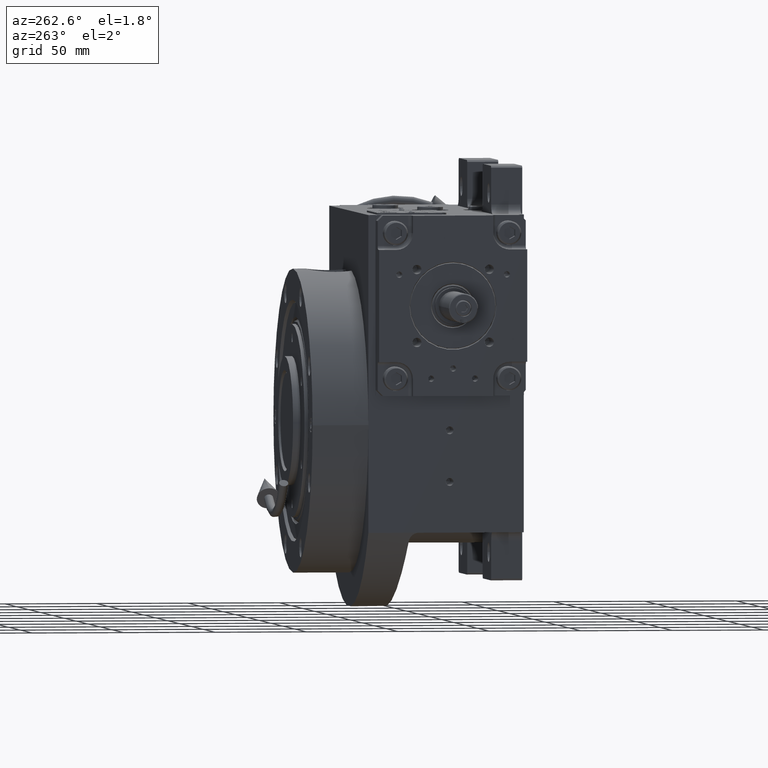
[diagram: clean part render]
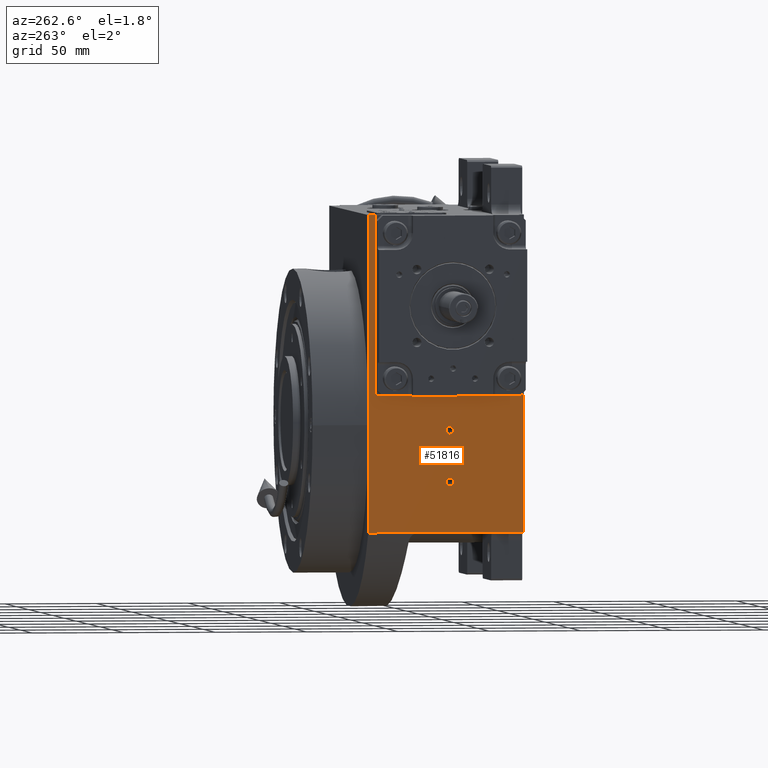
[diagram: same view with one face highlighted and labeled with its STEP entity id]
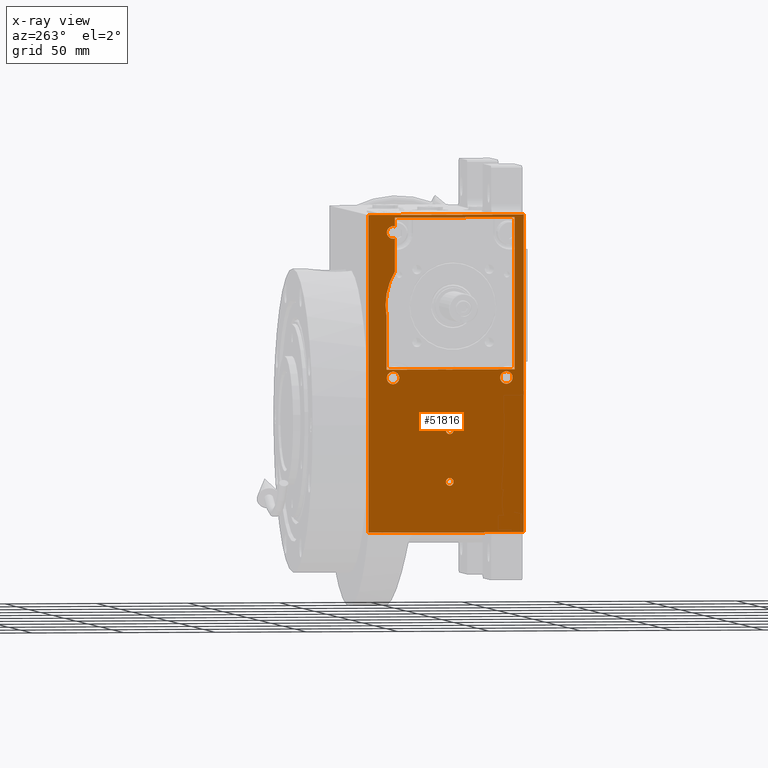
[diagram: x-ray of the same camera — body ghosted, the highlighted face saturated]
A machine part, auxiliary view. The second image highlights one B-rep face of the part: STEP entity #51816.
The next image is the same camera in x-ray: the body ghosted, the highlighted face saturated — about 0% of this face is hidden behind the body in this view.
In plain terms, the highlighted planar face has unit normal (-1, 0, 0).
Its self-contained STEP definition (entity closure, byte-faithful):
#3 = CARTESIAN_POINT ( 'NONE',  ( -82.50000000000000000, 44.50000000000000000, -58.50000000000000000 ) ) ;
#186 = DIRECTION ( 'NONE',  ( 0.000000000000000000, -1.000000000000000000, -8.260587980841937794E-16 ) ) ;
#258 = EDGE_CURVE ( 'NONE', #50336, #52436, #26690, .T. ) ;
#322 = CARTESIAN_POINT ( 'NONE',  ( -82.50000000000000000, -31.00000000000000000, 25.50000000000000000 ) ) ;
#570 = CIRCLE ( 'NONE', #29520, 2.100000000000000089 ) ;
#626 = VERTEX_POINT ( 'NONE', #20182 ) ;
#651 = CARTESIAN_POINT ( 'NONE',  ( -82.49999999999994316, 34.49999999999999289, 30.00000000000000000 ) ) ;
#691 = CIRCLE ( 'NONE', #5697, 3.400000000000000355 ) ;
#780 = EDGE_LOOP ( 'NONE', ( #30634, #38618, #28043, #57589, #1068, #56854, #18006, #2316, #5041, #38037, #61325, #3346, #40463 ) ) ;
#1068 = ORIENTED_EDGE ( 'NONE', *, *, #4287, .T. ) ;
#1262 = ORIENTED_EDGE ( 'NONE', *, *, #258, .F. ) ;
#1839 = CARTESIAN_POINT ( 'NONE',  ( -82.50000000000000000, 2.100000000000000089, -31.00000000000000000 ) ) ;
#2019 = EDGE_CURVE ( 'NONE', #4799, #38935, #5734, .T. ) ;
#2174 = CARTESIAN_POINT ( 'NONE',  ( -82.50000000000000000, 44.50000000000000000, -58.50000000000000000 ) ) ;
#2316 = ORIENTED_EDGE ( 'NONE', *, *, #52853, .T. ) ;
#2926 = CARTESIAN_POINT ( 'NONE',  ( -82.50000000000000000, 35.08908161224486122, 62.82758922874562302 ) ) ;
#3346 = ORIENTED_EDGE ( 'NONE', *, *, #18392, .T. ) ;
#3504 = CIRCLE ( 'NONE', #36591, 2.100000000000000089 ) ;
#3730 = CARTESIAN_POINT ( 'NONE',  ( -82.50000000000000000, 29.99999999930757255, -58.50000000028541791 ) ) ;
#3799 = DIRECTION ( 'NONE',  ( 0.000000000000000000, -1.000000000000000000, 0.000000000000000000 ) ) ;
#3997 = CARTESIAN_POINT ( 'NONE',  ( -82.50000000000000000, 27.59999999999999787, 25.50000000000000000 ) ) ;
#4120 = CARTESIAN_POINT ( 'NONE',  ( -82.50000000000000000, -40.50000000000000000, -58.50000000000000000 ) ) ;
#4287 = EDGE_CURVE ( 'NONE', #38935, #14141, #46616, .T. ) ;
#4752 = CARTESIAN_POINT ( 'NONE',  ( -82.49999999999994316, -35.50000000000001421, 29.99999999999999289 ) ) ;
#4799 = VERTEX_POINT ( 'NONE', #8055 ) ;
#4824 = VECTOR ( 'NONE', #53872, 1000.000000000000000 ) ;
#5041 = ORIENTED_EDGE ( 'NONE', *, *, #9142, .T. ) ;
#5697 = AXIS2_PLACEMENT_3D ( 'NONE', #322, #39483, #40453 ) ;
#5734 = CIRCLE ( 'NONE', #16058, 3.400000000000000355 ) ;
#6451 = AXIS2_PLACEMENT_3D ( 'NONE', #30943, #16413, #6692 ) ;
#6565 = VERTEX_POINT ( 'NONE', #1839 ) ;
#6641 = CARTESIAN_POINT ( 'NONE',  ( -82.50000000000001421, 34.49999998246811117, 58.58309560374851088 ) ) ;
#6692 = DIRECTION ( 'NONE',  ( 0.000000000000000000, -1.000000000000000000, 0.000000000000000000 ) ) ;
#6756 = CARTESIAN_POINT ( 'NONE',  ( -82.50000000000000000, 44.50000000000000000, 114.0000000000000000 ) ) ;
#6762 = B_SPLINE_CURVE_WITH_KNOTS ( 'NONE', 3,
 ( #38552, #39500, #43086, #34006, #58252, #28506, #54039, #18500, #53406, #34329, #59206, #13984, #58564, #63092 ),
 .UNSPECIFIED., .F., .F.,
 ( 4, 1, 2, 2, 1, 2, 2, 4 ),
 ( 0.000000000000000000, 0.04341200056680650371, 0.05426500070850821117, 0.06511800085020991169, 0.08682400113361293803, 0.1085300014170159644, 0.1302360017004190185, 0.1736480022672247103 ),
 .UNSPECIFIED. ) ;
#6998 = CARTESIAN_POINT ( 'NONE',  ( -82.50000000000000000, -40.50000000000000000, -58.50000000000000000 ) ) ;
#7157 = CARTESIAN_POINT ( 'NONE',  ( -82.50000000000000000, 29.99999999995430500, 101.2503846381596730 ) ) ;
#7186 = DIRECTION ( 'NONE',  ( 0.000000000000000000, -1.000000000000000000, 0.000000000000000000 ) ) ;
#7234 = EDGE_CURVE ( 'NONE', #11166, #41161, #45037, .T. ) ;
#7620 = CARTESIAN_POINT ( 'NONE',  ( -82.50000000000000000, 1.693755084738244543, 29.93853868035975907 ) ) ;
#7790 = VECTOR ( 'NONE', #44877, 1000.000000000000000 ) ;
#8055 = CARTESIAN_POINT ( 'NONE',  ( -82.50000000000000000, 34.39999999999999858, 104.5000000000000000 ) ) ;
#8244 = VECTOR ( 'NONE', #59508, 1000.000000000000000 ) ;
#8396 = VERTEX_POINT ( 'NONE', #6641 ) ;
#8517 = CARTESIAN_POINT ( 'NONE',  ( -82.50000000000000000, 31.00000000000000000, 104.5000000000000000 ) ) ;
#8835 = DIRECTION ( 'NONE',  ( 1.000000000000000000, 0.000000000000000000, 0.000000000000000000 ) ) ;
#8997 = FACE_OUTER_BOUND ( 'NONE', #54423, .T. ) ;
#9142 = EDGE_CURVE ( 'NONE', #28813, #47250, #31211, .T. ) ;
#9281 = CARTESIAN_POINT ( 'NONE',  ( -82.50000000000000000, -35.50000000000001421, -58.50000000000000000 ) ) ;
#9793 = EDGE_CURVE ( 'NONE', #50336, #14296, #40365, .T. ) ;
#9936 = CARTESIAN_POINT ( 'NONE',  ( -82.50000000000000000, 34.49999999999999289, -58.50000000000000000 ) ) ;
#10303 = DIRECTION ( 'NONE',  ( 0.000000000000000000, -1.000000000000000000, 0.000000000000000000 ) ) ;
#10977 = DIRECTION ( 'NONE',  ( -0.000000000000000000, 1.000000000000000000, 9.912705577010326782E-17 ) ) ;
#11166 = VERTEX_POINT ( 'NONE', #2174 ) ;
#11430 = VERTEX_POINT ( 'NONE', #24431 ) ;
#11483 = EDGE_CURVE ( 'NONE', #11430, #39948, #14450, .T. ) ;
#11723 = CARTESIAN_POINT ( 'NONE',  ( -82.50000000000000000, -2.100000000000000089, -3.000000000000000000 ) ) ;
#12225 = ORIENTED_EDGE ( 'NONE', *, *, #29745, .T. ) ;
#12668 = EDGE_CURVE ( 'NONE', #39344, #29463, #57591, .T. ) ;
#12688 = ORIENTED_EDGE ( 'NONE', *, *, #29625, .T. ) ;
#12691 = AXIS2_PLACEMENT_3D ( 'NONE', #31663, #26154, #21316 ) ;
#12694 = CIRCLE ( 'NONE', #48815, 2.100000000000000089 ) ;
#12777 = DIRECTION ( 'NONE',  ( 0.000000000000000000, 1.000000000000000000, 0.000000000000000000 ) ) ;
#12837 = VERTEX_POINT ( 'NONE', #52834 ) ;
#12844 = VERTEX_POINT ( 'NONE', #651 ) ;
#13217 = CARTESIAN_POINT ( 'NONE',  ( -82.50000000000000000, -2.100000000000000089, -31.00000000000000000 ) ) ;
#13226 = AXIS2_PLACEMENT_3D ( 'NONE', #42198, #26667, #12777 ) ;
#13296 = CARTESIAN_POINT ( 'NONE',  ( -82.50000000000001421, 34.49999998246811117, 58.58309560374851088 ) ) ;
#13311 = CARTESIAN_POINT ( 'NONE',  ( -82.50000000000001421, -2.536110195798589206, 29.99974328700381321 ) ) ;
#13852 = FACE_BOUND ( 'NONE', #16146, .T. ) ;
#13984 = CARTESIAN_POINT ( 'NONE',  ( -82.50000000000000000, 31.55988692790298700, 80.42704711029396947 ) ) ;
#14141 = VERTEX_POINT ( 'NONE', #60566 ) ;
#14219 = CARTESIAN_POINT ( 'NONE',  ( -82.50000000000000000, 30.00000000867837002, 83.20545253224972271 ) ) ;
#14296 = VERTEX_POINT ( 'NONE', #22693 ) ;
#14450 = LINE ( 'NONE', #9281, #4824 ) ;
#14484 = DIRECTION ( 'NONE',  ( 0.000000000000000000, 0.000000000000000000, 1.000000000000000000 ) ) ;
#16058 = AXIS2_PLACEMENT_3D ( 'NONE', #8517, #8835, #33722 ) ;
#16146 = EDGE_LOOP ( 'NONE', ( #56517, #47760 ) ) ;
#16413 = DIRECTION ( 'NONE',  ( 1.000000000000000000, 0.000000000000000000, 0.000000000000000000 ) ) ;
#17465 = VECTOR ( 'NONE', #22975, 1000.000000000000000 ) ;
#17479 = ORIENTED_EDGE ( 'NONE', *, *, #12668, .T. ) ;
#17505 = CARTESIAN_POINT ( 'NONE',  ( -82.50000000000000000, -27.59999999999999787, 25.50000000000000000 ) ) ;
#17832 = CARTESIAN_POINT ( 'NONE',  ( -82.50000000000000000, 29.99999999930757255, -58.50000000028541791 ) ) ;
#18006 = ORIENTED_EDGE ( 'NONE', *, *, #11483, .T. ) ;
#18177 = DIRECTION ( 'NONE',  ( 0.000000000000000000, 1.000000000000000000, 0.000000000000000000 ) ) ;
#18193 = ORIENTED_EDGE ( 'NONE', *, *, #19844, .T. ) ;
#18392 = EDGE_CURVE ( 'NONE', #12844, #8396, #43593, .T. ) ;
#18500 = CARTESIAN_POINT ( 'NONE',  ( -82.50000000000001421, 33.81987246518856693, 74.46412064016473664 ) ) ;
#19013 = FACE_BOUND ( 'NONE', #780, .T. ) ;
#19462 = EDGE_CURVE ( 'NONE', #27619, #46892, #49804, .T. ) ;
#19488 = CARTESIAN_POINT ( 'NONE',  ( -82.50000000000000000, -40.50000000000000711, 29.99999999999997868 ) ) ;
#19844 = EDGE_CURVE ( 'NONE', #29463, #39344, #34318, .T. ) ;
#20182 = CARTESIAN_POINT ( 'NONE',  ( -82.50001592522831118, 35.09186693461254691, 64.99999953009839260 ) ) ;
#20758 = ORIENTED_EDGE ( 'NONE', *, *, #48185, .T. ) ;
#20836 = VERTEX_POINT ( 'NONE', #11723 ) ;
#21116 = DIRECTION ( 'NONE',  ( 0.000000000000000000, 1.000000000000000000, 8.260587980841937794E-16 ) ) ;
#21122 = AXIS2_PLACEMENT_3D ( 'NONE', #54845, #49034, #186 ) ;
#21316 = DIRECTION ( 'NONE',  ( 0.000000000000000000, 1.000000000000000000, -2.040851148208007998E-15 ) ) ;
#22661 = CARTESIAN_POINT ( 'NONE',  ( -82.50000000000000000, -0.8484797862254708223, 29.90810260806298970 ) ) ;
#22693 = CARTESIAN_POINT ( 'NONE',  ( -82.50000000000000000, -40.50000000000000000, 114.0000000000000000 ) ) ;
#22975 = DIRECTION ( 'NONE',  ( 0.000000000000000000, 4.048429820936533247E-12, 1.000000000000000000 ) ) ;
#23314 = EDGE_CURVE ( 'NONE', #46892, #27619, #691, .T. ) ;
#23676 = DIRECTION ( 'NONE',  ( 0.000000000000000000, 1.000000000000000000, 0.000000000000000000 ) ) ;
#23852 = VERTEX_POINT ( 'NONE', #14219 ) ;
#24431 = CARTESIAN_POINT ( 'NONE',  ( -82.49999999999994316, -35.50000000000001421, 112.4999999999999005 ) ) ;
#24849 = CARTESIAN_POINT ( 'NONE',  ( -82.49999999999994316, 34.49999999999999289, 30.00000000000000000 ) ) ;
#25302 = CARTESIAN_POINT ( 'NONE',  ( -82.50000000000000000, 0.000000000000000000, -3.000000000000000000 ) ) ;
#25369 = ORIENTED_EDGE ( 'NONE', *, *, #46413, .T. ) ;
#25418 = EDGE_LOOP ( 'NONE', ( #17479, #18193 ) ) ;
#25996 = VECTOR ( 'NONE', #10977, 1000.000000000000000 ) ;
#26154 = DIRECTION ( 'NONE',  ( 1.000000000000000000, 0.000000000000000000, 0.000000000000000000 ) ) ;
#26667 = DIRECTION ( 'NONE',  ( 1.000000000000000000, 0.000000000000000000, 0.000000000000000000 ) ) ;
#26690 = LINE ( 'NONE', #6998, #33485 ) ;
#27168 = VERTEX_POINT ( 'NONE', #56062 ) ;
#27309 = CARTESIAN_POINT ( 'NONE',  ( -82.50000000000001421, 2.536110577986972814, 29.99973809510204248 ) ) ;
#27619 = VERTEX_POINT ( 'NONE', #17505 ) ;
#28042 = AXIS2_PLACEMENT_3D ( 'NONE', #33019, #51466, #7186 ) ;
#28043 = ORIENTED_EDGE ( 'NONE', *, *, #43529, .T. ) ;
#28167 = CARTESIAN_POINT ( 'NONE',  ( -82.50000000000001421, -2.287620885322700237E-09, 29.90816376197471627 ) ) ;
#28430 = CARTESIAN_POINT ( 'NONE',  ( -82.50000000000000000, 34.39999999999999858, 25.50000000000000000 ) ) ;
#28506 = CARTESIAN_POINT ( 'NONE',  ( -82.50000000000000000, 34.44123850628318451, 71.73586743115500042 ) ) ;
#28694 = PLANE ( 'NONE',  #32576 ) ;
#28813 = VERTEX_POINT ( 'NONE', #45669 ) ;
#29058 = CIRCLE ( 'NONE', #28042, 3.400000000000000355 ) ;
#29463 = VERTEX_POINT ( 'NONE', #3997 ) ;
#29520 = AXIS2_PLACEMENT_3D ( 'NONE', #25302, #49883, #21116 ) ;
#29625 = EDGE_CURVE ( 'NONE', #12837, #20836, #570, .T. ) ;
#29745 = EDGE_CURVE ( 'NONE', #14296, #41161, #61812, .T. ) ;
#30634 = ORIENTED_EDGE ( 'NONE', *, *, #38923, .T. ) ;
#30943 = CARTESIAN_POINT ( 'NONE',  ( -82.50000000000000000, 31.00000000000000000, 25.50000000000000000 ) ) ;
#31211 = B_SPLINE_CURVE_WITH_KNOTS ( 'NONE', 3,
 ( #13311, #52737, #22661, #28167 ),
 .UNSPECIFIED., .F., .F.,
 ( 4, 4 ),
 ( 0.4769927843648675836, 0.4999998433996634128 ),
 .UNSPECIFIED. ) ;
#31663 = CARTESIAN_POINT ( 'NONE',  ( -82.50000000000000000, -31.00000000000000000, 25.50000000000000000 ) ) ;
#31701 = VECTOR ( 'NONE', #45010, 1000.000000000000000 ) ;
#32236 = B_SPLINE_CURVE_WITH_KNOTS ( 'NONE', 3,
 ( #57359, #47681, #7620, #27309 ),
 .UNSPECIFIED., .F., .F.,
 ( 4, 4 ),
 ( 0.4999998433996634128, 0.5230117272599914546 ),
 .UNSPECIFIED. ) ;
#32576 = AXIS2_PLACEMENT_3D ( 'NONE', #4120, #43598, #60351 ) ;
#33019 = CARTESIAN_POINT ( 'NONE',  ( -82.50000000000000000, 31.00000000000000000, 104.5000000000000000 ) ) ;
#33485 = VECTOR ( 'NONE', #41605, 1000.000000000000000 ) ;
#33513 = EDGE_LOOP ( 'NONE', ( #36780, #25369 ) ) ;
#33722 = DIRECTION ( 'NONE',  ( 0.000000000000000000, 1.000000000000000000, 8.163404592832031993E-15 ) ) ;
#34006 = CARTESIAN_POINT ( 'NONE',  ( -82.49999999999998579, 34.64992140295584022, 70.56373136111959354 ) ) ;
#34318 = CIRCLE ( 'NONE', #6451, 3.400000000000000355 ) ;
#34329 = CARTESIAN_POINT ( 'NONE',  ( -82.49999999999998579, 32.80572396566295623, 77.48509901605747530 ) ) ;
#34899 = LINE ( 'NONE', #24849, #25996 ) ;
#35836 = ORIENTED_EDGE ( 'NONE', *, *, #55888, .T. ) ;
#36013 = EDGE_CURVE ( 'NONE', #14141, #11430, #47472, .T. ) ;
#36386 = VECTOR ( 'NONE', #59898, 1000.000000000000000 ) ;
#36591 = AXIS2_PLACEMENT_3D ( 'NONE', #47637, #48594, #23676 ) ;
#36780 = ORIENTED_EDGE ( 'NONE', *, *, #62227, .T. ) ;
#37569 = CARTESIAN_POINT ( 'NONE',  ( -82.50000000000000000, -40.50000000000000000, 114.0000000000000000 ) ) ;
#38037 = ORIENTED_EDGE ( 'NONE', *, *, #38342, .T. ) ;
#38342 = EDGE_CURVE ( 'NONE', #47250, #27168, #32236, .T. ) ;
#38416 = FACE_BOUND ( 'NONE', #33513, .T. ) ;
#38552 = CARTESIAN_POINT ( 'NONE',  ( -82.50001592522831118, 35.09186693461254691, 64.99999953009839260 ) ) ;
#38618 = ORIENTED_EDGE ( 'NONE', *, *, #61803, .T. ) ;
#38923 = EDGE_CURVE ( 'NONE', #626, #23852, #6762, .T. ) ;
#38935 = VERTEX_POINT ( 'NONE', #57933 ) ;
#38985 = DIRECTION ( 'NONE',  ( 0.000000000000000000, 4.048429820936533247E-12, 1.000000000000000000 ) ) ;
#39344 = VERTEX_POINT ( 'NONE', #28430 ) ;
#39483 = DIRECTION ( 'NONE',  ( 1.000000000000000000, 0.000000000000000000, 0.000000000000000000 ) ) ;
#39500 = CARTESIAN_POINT ( 'NONE',  ( -82.50000000000002842, 35.08975819422995102, 66.61074919792433491 ) ) ;
#39948 = VERTEX_POINT ( 'NONE', #4752 ) ;
#40365 = LINE ( 'NONE', #60057, #7790 ) ;
#40453 = DIRECTION ( 'NONE',  ( 0.000000000000000000, -1.000000000000000000, 2.040851148208007998E-15 ) ) ;
#40460 = LINE ( 'NONE', #3, #8244 ) ;
#40463 = ORIENTED_EDGE ( 'NONE', *, *, #62811, .T. ) ;
#40662 = VECTOR ( 'NONE', #38985, 1000.000000000000000 ) ;
#41161 = VERTEX_POINT ( 'NONE', #6756 ) ;
#41605 = DIRECTION ( 'NONE',  ( 0.000000000000000000, 1.000000000000000000, 0.000000000000000000 ) ) ;
#42198 = CARTESIAN_POINT ( 'NONE',  ( -82.50000000000000000, 31.00000000000000000, 25.50000000000000000 ) ) ;
#42377 = ORIENTED_EDGE ( 'NONE', *, *, #9793, .T. ) ;
#42405 = CARTESIAN_POINT ( 'NONE',  ( -82.50001592522831118, 35.09186693461254691, 64.99999953009839260 ) ) ;
#43086 = CARTESIAN_POINT ( 'NONE',  ( -82.50000000000002842, 34.95338893702608374, 68.60145005483263958 ) ) ;
#43273 = CARTESIAN_POINT ( 'NONE',  ( -82.50000000000000000, -40.50000000000000000, 112.4999999999999005 ) ) ;
#43529 = EDGE_CURVE ( 'NONE', #49181, #4799, #29058, .T. ) ;
#43593 = LINE ( 'NONE', #9936, #51729 ) ;
#43598 = DIRECTION ( 'NONE',  ( -1.000000000000000000, 0.000000000000000000, 0.000000000000000000 ) ) ;
#44877 = DIRECTION ( 'NONE',  ( 0.000000000000000000, 0.000000000000000000, 1.000000000000000000 ) ) ;
#44891 = CIRCLE ( 'NONE', #21122, 2.100000000000000089 ) ;
#45010 = DIRECTION ( 'NONE',  ( 0.000000000000000000, 1.000000000000000000, 9.912705577010326782E-17 ) ) ;
#45037 = LINE ( 'NONE', #49553, #36386 ) ;
#45669 = CARTESIAN_POINT ( 'NONE',  ( -82.50000000000001421, -2.536110195798589206, 29.99974328700381321 ) ) ;
#45746 = CARTESIAN_POINT ( 'NONE',  ( -82.50000025268040815, 16.91834885168089997, -58.49999999999780442 ) ) ;
#46413 = EDGE_CURVE ( 'NONE', #53041, #6565, #12694, .T. ) ;
#46616 = LINE ( 'NONE', #17832, #17465 ) ;
#46892 = VERTEX_POINT ( 'NONE', #50948 ) ;
#47240 = CARTESIAN_POINT ( 'NONE',  ( -82.50000000000000000, 34.89175422473395116, 60.68862570168793980 ) ) ;
#47250 = VERTEX_POINT ( 'NONE', #60241 ) ;
#47472 = LINE ( 'NONE', #43273, #61997 ) ;
#47637 = CARTESIAN_POINT ( 'NONE',  ( -82.50000000000000000, 2.220446049250315053E-16, -31.00000000000000000 ) ) ;
#47681 = CARTESIAN_POINT ( 'NONE',  ( -82.50000000000000000, 0.8486577169056170877, 29.90807645586816577 ) ) ;
#47760 = ORIENTED_EDGE ( 'NONE', *, *, #23314, .T. ) ;
#48034 = LINE ( 'NONE', #3730, #40662 ) ;
#48185 = EDGE_CURVE ( 'NONE', #20836, #12837, #44891, .T. ) ;
#48594 = DIRECTION ( 'NONE',  ( 1.000000000000000000, 0.000000000000000000, 0.000000000000000000 ) ) ;
#48815 = AXIS2_PLACEMENT_3D ( 'NONE', #59436, #54580, #10303 ) ;
#49034 = DIRECTION ( 'NONE',  ( 1.000000000000000000, 0.000000000000000000, 0.000000000000000000 ) ) ;
#49181 = VERTEX_POINT ( 'NONE', #7157 ) ;
#49553 = CARTESIAN_POINT ( 'NONE',  ( -82.50000000000000000, 44.50000000000000000, -58.50000000000000000 ) ) ;
#49804 = CIRCLE ( 'NONE', #12691, 3.400000000000000355 ) ;
#49883 = DIRECTION ( 'NONE',  ( 1.000000000000000000, 0.000000000000000000, 0.000000000000000000 ) ) ;
#50336 = VERTEX_POINT ( 'NONE', #52466 ) ;
#50948 = CARTESIAN_POINT ( 'NONE',  ( -82.50000000000000000, -34.39999999999999858, 25.50000000000000000 ) ) ;
#51371 = ORIENTED_EDGE ( 'NONE', *, *, #7234, .F. ) ;
#51466 = DIRECTION ( 'NONE',  ( 1.000000000000000000, 0.000000000000000000, 0.000000000000000000 ) ) ;
#51646 = EDGE_LOOP ( 'NONE', ( #12688, #20758 ) ) ;
#51729 = VECTOR ( 'NONE', #14484, 1000.000000000000000 ) ;
#51816 = ADVANCED_FACE ( 'NONE', ( #38416, #58127, #13852, #53273, #19013, #8997 ), #28694, .T. ) ;
#52436 = VERTEX_POINT ( 'NONE', #45746 ) ;
#52466 = CARTESIAN_POINT ( 'NONE',  ( -82.50000000000000000, -40.50000000000000000, -58.50000000000000000 ) ) ;
#52737 = CARTESIAN_POINT ( 'NONE',  ( -82.50000000000000000, -1.693856051063748369, 29.93856828993435926 ) ) ;
#52834 = CARTESIAN_POINT ( 'NONE',  ( -82.50000000000000000, 2.100000000000000089, -3.000000000000000000 ) ) ;
#52853 = EDGE_CURVE ( 'NONE', #39948, #28813, #60191, .T. ) ;
#53041 = VERTEX_POINT ( 'NONE', #13217 ) ;
#53273 = FACE_BOUND ( 'NONE', #25418, .T. ) ;
#53406 = CARTESIAN_POINT ( 'NONE',  ( -82.50000000000000000, 33.33875079064434033, 75.98289247495044663 ) ) ;
#53872 = DIRECTION ( 'NONE',  ( 0.000000000000000000, 0.000000000000000000, -1.000000000000000000 ) ) ;
#54039 = CARTESIAN_POINT ( 'NONE',  ( -82.50000000000001421, 34.19718383885854252, 72.91221821802147929 ) ) ;
#54423 = EDGE_LOOP ( 'NONE', ( #1262, #42377, #12225, #51371, #35836 ) ) ;
#54580 = DIRECTION ( 'NONE',  ( 1.000000000000000000, 0.000000000000000000, 0.000000000000000000 ) ) ;
#54845 = CARTESIAN_POINT ( 'NONE',  ( -82.50000000000000000, 0.000000000000000000, -3.000000000000000000 ) ) ;
#55888 = EDGE_CURVE ( 'NONE', #11166, #52436, #40460, .T. ) ;
#56062 = CARTESIAN_POINT ( 'NONE',  ( -82.50000000000001421, 2.536110577986972814, 29.99973809510204248 ) ) ;
#56517 = ORIENTED_EDGE ( 'NONE', *, *, #19462, .T. ) ;
#56854 = ORIENTED_EDGE ( 'NONE', *, *, #36013, .T. ) ;
#57359 = CARTESIAN_POINT ( 'NONE',  ( -82.50000000000001421, -2.287620885322700237E-09, 29.90816376197471627 ) ) ;
#57361 = B_SPLINE_CURVE_WITH_KNOTS ( 'NONE', 3,
 ( #13296, #47240, #2926, #42405 ),
 .UNSPECIFIED., .F., .F.,
 ( 4, 4 ),
 ( 0.9414611157487362547, 1.000000000000000000 ),
 .UNSPECIFIED. ) ;
#57589 = ORIENTED_EDGE ( 'NONE', *, *, #2019, .T. ) ;
#57591 = CIRCLE ( 'NONE', #13226, 3.400000000000000355 ) ;
#57933 = CARTESIAN_POINT ( 'NONE',  ( -82.50000000000000000, 29.99999999998061995, 107.7496153618484129 ) ) ;
#58127 = FACE_BOUND ( 'NONE', #51646, .T. ) ;
#58252 = CARTESIAN_POINT ( 'NONE',  ( -82.49999999999998579, 34.51516652717843670, 71.34637031958465059 ) ) ;
#58564 = CARTESIAN_POINT ( 'NONE',  ( -82.49999999999997158, 30.82821280392017016, 81.84160544066514831 ) ) ;
#59206 = CARTESIAN_POINT ( 'NONE',  ( -82.49999999999998579, 32.51271328324587984, 78.22921750587390477 ) ) ;
#59436 = CARTESIAN_POINT ( 'NONE',  ( -82.50000000000000000, 0.000000000000000000, -31.00000000000000000 ) ) ;
#59508 = DIRECTION ( 'NONE',  ( 0.000000000000000000, -1.000000000000000000, 3.148047468836620162E-13 ) ) ;
#59769 = EDGE_CURVE ( 'NONE', #27168, #12844, #34899, .T. ) ;
#59898 = DIRECTION ( 'NONE',  ( 0.000000000000000000, 0.000000000000000000, 1.000000000000000000 ) ) ;
#60057 = CARTESIAN_POINT ( 'NONE',  ( -82.50000000000000000, -40.50000000000000000, -58.50000000000000000 ) ) ;
#60191 = LINE ( 'NONE', #19488, #31701 ) ;
#60241 = CARTESIAN_POINT ( 'NONE',  ( -82.50000000000001421, -2.287620885322700237E-09, 29.90816376197471627 ) ) ;
#60351 = DIRECTION ( 'NONE',  ( 0.000000000000000000, 0.000000000000000000, 1.000000000000000000 ) ) ;
#60566 = CARTESIAN_POINT ( 'NONE',  ( -82.49999999999994316, 29.99999999999985079, 112.4999999999999005 ) ) ;
#61325 = ORIENTED_EDGE ( 'NONE', *, *, #59769, .T. ) ;
#61549 = VECTOR ( 'NONE', #18177, 1000.000000000000000 ) ;
#61803 = EDGE_CURVE ( 'NONE', #23852, #49181, #48034, .T. ) ;
#61812 = LINE ( 'NONE', #37569, #61549 ) ;
#61997 = VECTOR ( 'NONE', #3799, 1000.000000000000000 ) ;
#62227 = EDGE_CURVE ( 'NONE', #6565, #53041, #3504, .T. ) ;
#62811 = EDGE_CURVE ( 'NONE', #8396, #626, #57361, .T. ) ;
#63092 = CARTESIAN_POINT ( 'NONE',  ( -82.50000000000000000, 30.00000000867837002, 83.20545253224972271 ) ) ;